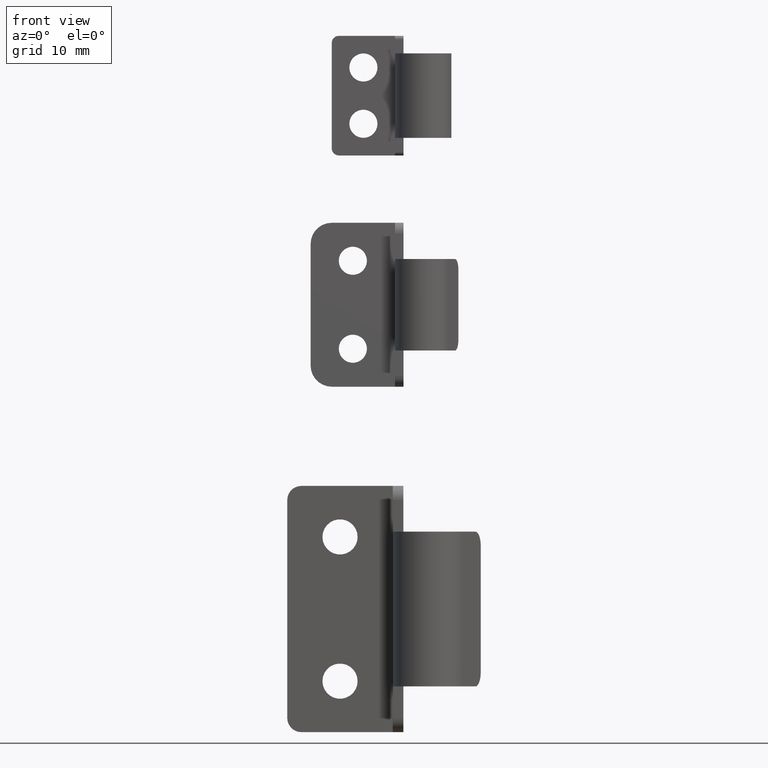
[diagram: clean part render]
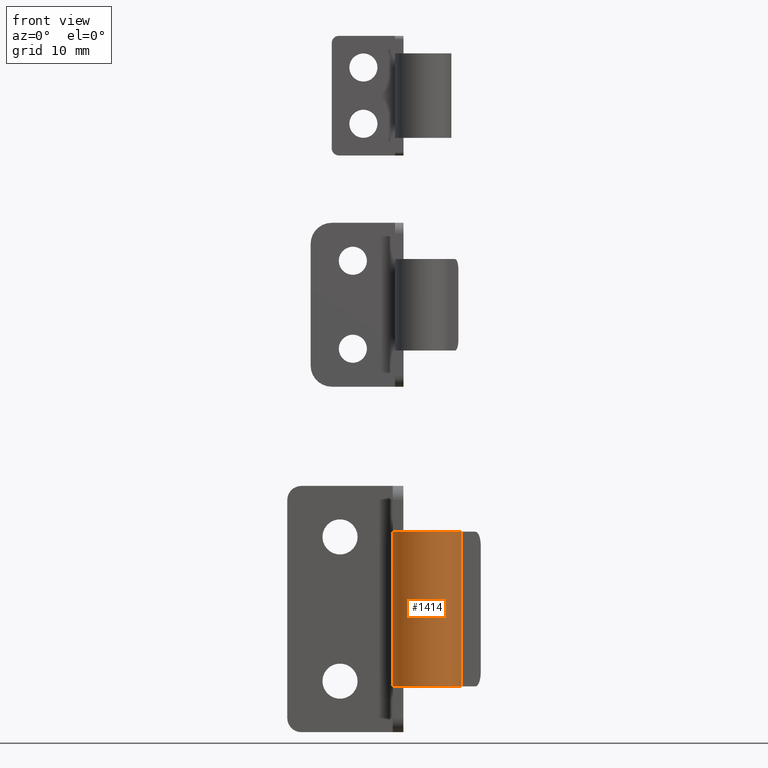
[diagram: same view with one face highlighted and labeled with its STEP entity id]
A machine part, front view. The second image highlights one B-rep face of the part: STEP entity #1414.
In plain terms, the highlighted cylindrical surface (edge-blend (fillet) strip) has radius 5 mm, axis along (0, 0, -1).
Its self-contained STEP definition (entity closure, byte-faithful):
#24=B_SPLINE_CURVE_WITH_KNOTS('',3,(#2220,#2221,#2222,#2223,#2224,#2225),
 .UNSPECIFIED.,.F.,.F.,(4,2,4),(0.640559601224385,0.71594226699753,0.726912063467287),
 .UNSPECIFIED.);
#26=B_SPLINE_CURVE_WITH_KNOTS('',3,(#2255,#2256,#2257,#2258,#2259,#2260),
 .UNSPECIFIED.,.F.,.F.,(4,2,4),(-0.0863629999116361,-0.0755286744749131,
0.),.UNSPECIFIED.);
#152=FACE_OUTER_BOUND('',#237,.T.);
#237=EDGE_LOOP('',(#1172,#1173,#1174,#1175,#1176,#1177,#1178,#1179));
#327=LINE('',#2188,#458);
#335=LINE('',#2228,#466);
#344=LINE('',#2263,#475);
#358=LINE('',#2313,#489);
#458=VECTOR('',#1761,22.);
#466=VECTOR('',#1787,4.5);
#475=VECTOR('',#1808,4.5);
#489=VECTOR('',#1862,32.7435595774163);
#559=CIRCLE('',#1500,5.);
#562=CIRCLE('',#1508,5.);
#645=VERTEX_POINT('',#2172);
#646=VERTEX_POINT('',#2174);
#651=VERTEX_POINT('',#2186);
#656=VERTEX_POINT('',#2200);
#657=VERTEX_POINT('',#2204);
#662=VERTEX_POINT('',#2218);
#669=VERTEX_POINT('',#2252);
#670=VERTEX_POINT('',#2254);
#805=EDGE_CURVE('',#646,#645,#559,.T.);
#812=EDGE_CURVE('',#651,#645,#327,.T.);
#819=EDGE_CURVE('',#651,#656,#562,.T.);
#825=EDGE_CURVE('',#662,#657,#24,.T.);
#827=EDGE_CURVE('',#662,#646,#335,.T.);
#838=EDGE_CURVE('',#669,#670,#26,.T.);
#840=EDGE_CURVE('',#656,#670,#344,.T.);
#864=EDGE_CURVE('',#657,#669,#358,.T.);
#1172=ORIENTED_EDGE('',*,*,#825,.F.);
#1173=ORIENTED_EDGE('',*,*,#827,.T.);
#1174=ORIENTED_EDGE('',*,*,#805,.T.);
#1175=ORIENTED_EDGE('',*,*,#812,.F.);
#1176=ORIENTED_EDGE('',*,*,#819,.T.);
#1177=ORIENTED_EDGE('',*,*,#840,.T.);
#1178=ORIENTED_EDGE('',*,*,#838,.F.);
#1179=ORIENTED_EDGE('',*,*,#864,.F.);
#1357=CYLINDRICAL_SURFACE('',#1538,5.);
#1414=ADVANCED_FACE('',(#152),#1357,.T.);
#1500=AXIS2_PLACEMENT_3D('',#2175,#1749,#1750);
#1508=AXIS2_PLACEMENT_3D('',#2202,#1774,#1775);
#1538=AXIS2_PLACEMENT_3D('',#2312,#1860,#1861);
#1749=DIRECTION('center_axis',(0.,0.,1.));
#1750=DIRECTION('ref_axis',(-1.,2.22044604925031E-16,0.));
#1761=DIRECTION('',(0.,0.,-1.));
#1774=DIRECTION('center_axis',(0.,3.79819385961616E-16,-1.));
#1775=DIRECTION('ref_axis',(-1.,2.22044604925031E-16,0.));
#1787=DIRECTION('',(0.,0.,1.));
#1808=DIRECTION('',(0.,0.,1.));
#1860=DIRECTION('center_axis',(0.,0.,-1.));
#1861=DIRECTION('ref_axis',(-1.,2.22044604925031E-16,0.));
#1862=DIRECTION('',(0.,0.,1.));
#2172=CARTESIAN_POINT('',(-2.82300649446904,3.23202608921364,6.5));
#2174=CARTESIAN_POINT('',(-12.4959983987187,4.8,6.5));
#2175=CARTESIAN_POINT('Origin',(-7.5,5.,6.5));
#2186=CARTESIAN_POINT('',(-2.82300649446904,3.23202608921364,28.5));
#2188=CARTESIAN_POINT('',(-2.82300649446904,3.23202608921364,35.));
#2200=CARTESIAN_POINT('',(-12.4959983987187,4.8,28.5));
#2202=CARTESIAN_POINT('Origin',(-7.5,5.,28.5));
#2204=CARTESIAN_POINT('',(-12.5,5.,1.12822021129187));
#2218=CARTESIAN_POINT('',(-12.4959983987187,4.8,2.));
#2220=CARTESIAN_POINT('Ctrl Pts',(-12.4959983987187,4.8,2.));
#2221=CARTESIAN_POINT('Ctrl Pts',(-12.4959983987187,4.8,1.74872444742285));
#2222=CARTESIAN_POINT('Ctrl Pts',(-12.4987997239189,4.85024977111397,1.48076948886782));
#2223=CARTESIAN_POINT('Ctrl Pts',(-12.4999144811393,4.96719878730371,1.19853513981192));
#2224=CARTESIAN_POINT('Ctrl Pts',(-12.5,4.98310082256617,1.16311264602699));
#2225=CARTESIAN_POINT('Ctrl Pts',(-12.5,5.,1.12822021129187));
#2228=CARTESIAN_POINT('',(-12.4959983987187,4.8,35.));
#2252=CARTESIAN_POINT('',(-12.5,5.,33.8717797887081));
#2254=CARTESIAN_POINT('',(-12.4959983987187,4.8,33.));
#2255=CARTESIAN_POINT('Ctrl Pts',(-12.5,5.,33.8717797887081));
#2256=CARTESIAN_POINT('Ctrl Pts',(-12.5,4.98331126806052,33.8373218695407));
#2257=CARTESIAN_POINT('Ctrl Pts',(-12.4999165944177,4.96759530135788,33.8023477149323));
#2258=CARTESIAN_POINT('Ctrl Pts',(-12.4988129360559,4.85044308738513,33.5202023381222));
#2259=CARTESIAN_POINT('Ctrl Pts',(-12.4959983987187,4.8,33.2517622482497));
#2260=CARTESIAN_POINT('Ctrl Pts',(-12.4959983987187,4.8,33.));
#2263=CARTESIAN_POINT('',(-12.4959983987187,4.8,35.));
#2312=CARTESIAN_POINT('Origin',(-7.5,5.,35.));
#2313=CARTESIAN_POINT('',(-12.5,5.,35.));